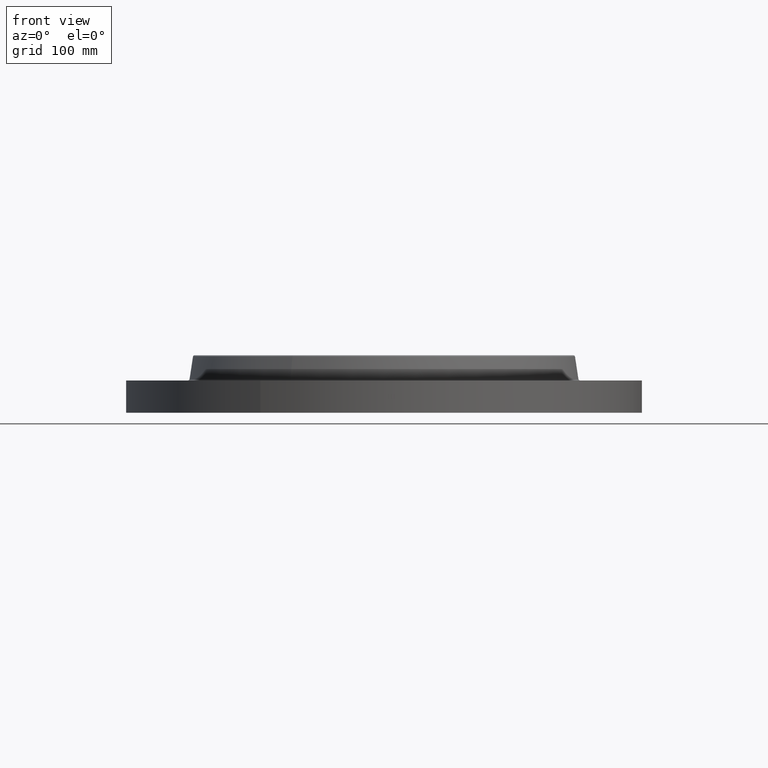
[diagram: clean part render]
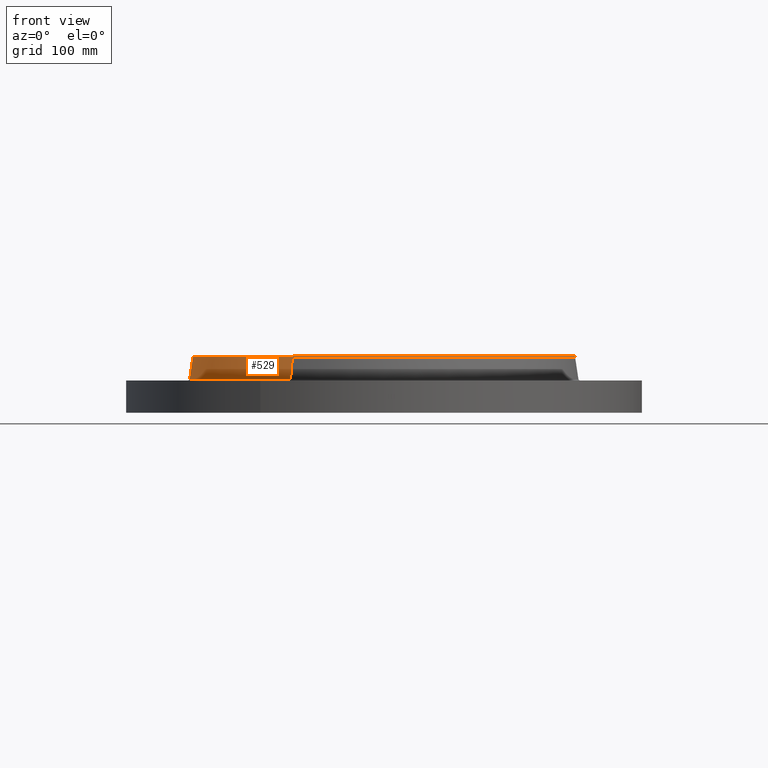
[diagram: same view with one face highlighted and labeled with its STEP entity id]
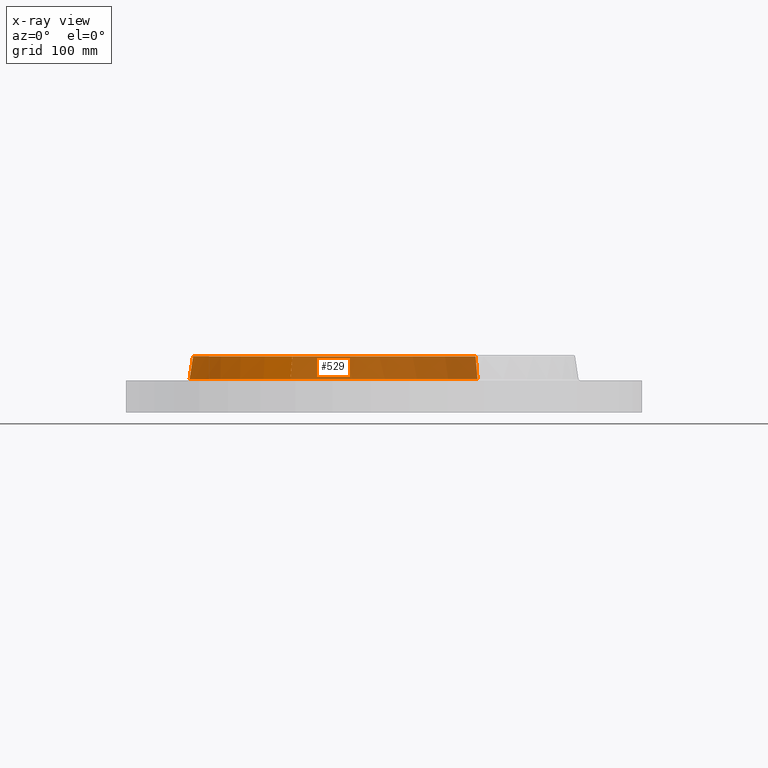
[diagram: x-ray of the same camera — body ghosted, the highlighted face saturated]
A machine part, front view. The second image highlights one B-rep face of the part: STEP entity #529.
The next image is the same camera in x-ray: the body ghosted, the highlighted face saturated — about 65% of this face is hidden behind the body in this view.
In plain terms, the highlighted conical surface has half-angle 10 deg.
Its self-contained STEP definition (entity closure, byte-faithful):
#477=AXIS2_PLACEMENT_3D('Circle Axis2P3D',#475,#476,$) ;
#490=AXIS2_PLACEMENT_3D('Cone Axis2P3D',#487,#488,#489) ;
#520=AXIS2_PLACEMENT_3D('Circle Axis2P3D',#518,#519,$) ;
#448=CARTESIAN_POINT('Vertex',(3.44287825089,6.30214636561,1.23958110934)) ;
#455=CARTESIAN_POINT('Vertex',(-3.44287825089,-6.30214636561,1.23958110934)) ;
#475=CARTESIAN_POINT('Axis2P3D Location',(0.,0.,1.23958110934)) ;
#487=CARTESIAN_POINT('Axis2P3D Location',(0.,0.,2.07041889067)) ;
#492=CARTESIAN_POINT('Line Origine',(3.40776054175,6.23786383021,1.65500000001)) ;
#496=CARTESIAN_POINT('Vertex',(3.37264283261,6.17358129481,2.07041889067)) ;
#503=CARTESIAN_POINT('Vertex',(-3.37264283261,-6.17358129481,2.07041889067)) ;
#506=CARTESIAN_POINT('Line Origine',(-3.40776054175,-6.23786383021,1.65500000001)) ;
#518=CARTESIAN_POINT('Axis2P3D Location',(0.,0.,2.07041889067)) ;
#476=DIRECTION('Axis2P3D Direction',(0.,0.,-0.0393700787402)) ;
#488=DIRECTION('Axis2P3D Direction',(0.,0.,-0.0393700787402)) ;
#489=DIRECTION('Axis2P3D XDirection',(-0.0188750212049,-0.0345504945626,0.)) ;
#493=DIRECTION('Vector Direction',(0.00327761303565,0.00599963041829,-0.03877195878)) ;
#507=DIRECTION('Vector Direction',(-0.00327761303565,-0.00599963041829,-0.03877195878)) ;
#519=DIRECTION('Axis2P3D Direction',(0.,0.,-0.0393700787402)) ;
#494=VECTOR('Line Direction',#493,0.0393700787402) ;
#508=VECTOR('Line Direction',#507,0.0393700787402) ;
#524=ORIENTED_EDGE('',*,*,#479,.F.) ;
#525=ORIENTED_EDGE('',*,*,#510,.T.) ;
#526=ORIENTED_EDGE('',*,*,#522,.T.) ;
#527=ORIENTED_EDGE('',*,*,#498,.F.) ;
#529=ADVANCED_FACE('PartBody',(#528),#491,.T.) ;
#478=CIRCLE('generated circle',#477,7.18125751272) ;
#521=CIRCLE('generated circle',#520,7.03475839528) ;
#491=CONICAL_SURFACE('Cone',#490,7.03475839528,0.174532925199) ;
#479=EDGE_CURVE('',#456,#449,#478,.T.) ;
#498=EDGE_CURVE('',#449,#497,#495,.F.) ;
#510=EDGE_CURVE('',#456,#504,#509,.F.) ;
#522=EDGE_CURVE('',#504,#497,#521,.T.) ;
#523=EDGE_LOOP('',(#524,#525,#526,#527)) ;
#528=FACE_OUTER_BOUND('',#523,.T.) ;
#495=LINE('Line',#492,#494) ;
#509=LINE('Line',#506,#508) ;
#449=VERTEX_POINT('',#448) ;
#456=VERTEX_POINT('',#455) ;
#497=VERTEX_POINT('',#496) ;
#504=VERTEX_POINT('',#503) ;